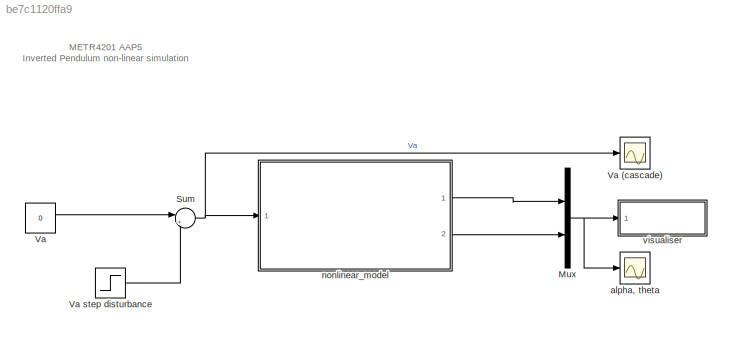
MODEL slx_be7c1120ffa9
KIND model
CONFIG AbsTol = auto
CONFIG EnableMultiTasking = on
CONFIG FixedStep = .001
CONFIG MaxStep = auto
CONFIG MinStep = auto
CONFIG RelTol = 1e-3
CONFIG SampleTimeConstraint = Unconstrained
CONFIG SolverName = FixedStepAuto
CONFIG StartTime = 0.0
CONFIG StopTime = 10
BLOCK [Mux] Mux
  DisplayOption = bar
  Inputs = 2
  Ports = [2, 1]
BLOCK [Sum] Sum
  Inputs = |++
  Ports = [2, 1]
BLOCK [Constant] Va
  Value = 0
BLOCK [Scope] Va (cascade)
  Floating = off
  NumInputPorts = 1
  Ports = [1]
  ScopeSpecificationString = C++SS(StrPVP('Location','[721, 576, 1281, 996]'),StrPVP('Open','off'),MxPVP('AxesTitles',54,'struct(''axes1'',''%<SignalLabel>'')'),MxPVP('ScopeGraphics',57,'struct(''FigureColor'',''[0.156862745098039 0.156862745098039 0.156862745098039]'',''AxesColor'',''[0 0 0]'',''AxesTickColor'',''[0.686274509803922 0.686274509803922 0.686274509803922]'',''LineColors'',''[1 1 0;1 0 1;0 1 1;1 0 0;0 1 0;0 0 1]'...<+379ch>
BLOCK [Step] Va step disturbance
  SampleTime = 0
BLOCK [Scope] alpha, theta
  Floating = off
  NumInputPorts = 1
  Ports = [1]
  ScopeSpecificationString = C++SS(StrPVP('Location','[1287, 242, 1847, 662]'),StrPVP('Open','off'),MxPVP('AxesTitles',54,'struct(''axes1'',''%<SignalLabel>'')'),MxPVP('ScopeGraphics',57,'struct(''FigureColor'',''[0.156862745098039 0.156862745098039 0.156862745098039]'',''AxesColor'',''[0 0 0]'',''AxesTickColor'',''[0.686274509803922 0.686274509803922 0.686274509803922]'',''LineColors'',''[1 1 0;1 0 1;0 1 1;1 0 0;0 1 0;0 0 1]...<+418ch>
BLOCK [SubSystem] nonlinear_model
  MinAlgLoopOccurrences = on
  Ports = [1, 2]
  ReferencedSubsystem = nonlinear_model
  RequestExecContextInheritance = off
  TreatAsGroupedWhenPropagatingVariantConditions = off
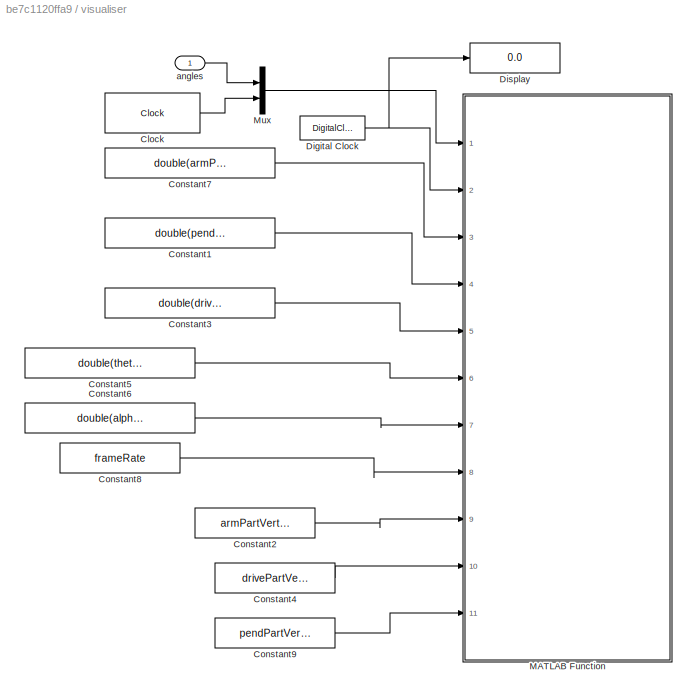
BLOCK [SubSystem] visualiser
  Ports = [1]
  RequestExecContextInheritance = off
BLOCK [Clock] visualiser/Clock
  DisplayTime = on
BLOCK [Constant] visualiser/Constant1
  Value = double(pendPartPatchHandle)
BLOCK [Constant] visualiser/Constant2
  Value = armPartVertices
  VectorParams1D = off
BLOCK [Constant] visualiser/Constant3
  Value = double(drivePartPatchHandle)
BLOCK [Constant] visualiser/Constant4
  Value = drivePartVertices
  VectorParams1D = off
BLOCK [Constant] visualiser/Constant5
  Value = double(thetaPlotHandle)
BLOCK [Constant] visualiser/Constant6
  Value = double(alphaPlotHandle)
BLOCK [Constant] visualiser/Constant7
  Value = double(armPartPatchHandle)
BLOCK [Constant] visualiser/Constant8
  Value = frameRate
  VectorParams1D = off
BLOCK [Constant] visualiser/Constant9
  Value = pendPartVertices
  VectorParams1D = off
BLOCK [DigitalClock] visualiser/Digital Clock
  SampleTime = .001
BLOCK [Display] visualiser/Display
  Decimation = 1
  Ports = [1]
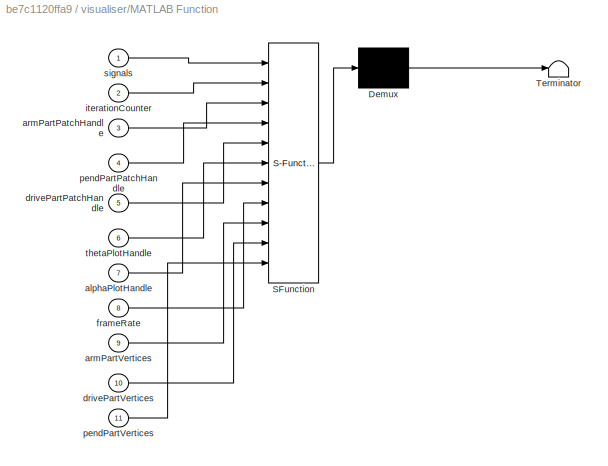
BLOCK [SubSystem] visualiser/MATLAB Function
  ErrorFcn = Stateflow.Translate.translate
  PermitHierarchicalResolution = ExplicitOnly
  Ports = [11]
  RequestExecContextInheritance = off
  SFBlockType = MATLAB Function
  TreatAsAtomicUnit = on
BLOCK [Demux] visualiser/MATLAB Function/ Demux 
  Outputs = 1
  Ports = [1, 1]
BLOCK [S-Function] visualiser/MATLAB Function/ SFunction 
  EnableBusSupport = on
  FunctionName = sf_sfun
  PortCounts = [11 1]
  Ports = [11, 1]
  SFcnIsStateOwnerBlock = off
  SFunctionDeploymentMode = off
  Tag = Stateflow S-Function 2
BLOCK [Terminator] visualiser/MATLAB Function/ Terminator 
BLOCK [Inport] visualiser/MATLAB Function/alphaPlotHandle
  Port = 7
BLOCK [Inport] visualiser/MATLAB Function/armPartPatchHandle
  Port = 3
BLOCK [Inport] visualiser/MATLAB Function/armPartVertices
  Port = 9
BLOCK [Inport] visualiser/MATLAB Function/drivePartPatchHandle
  Port = 5
BLOCK [Inport] visualiser/MATLAB Function/drivePartVertices
  Port = 10
BLOCK [Inport] visualiser/MATLAB Function/frameRate
  Port = 8
BLOCK [Inport] visualiser/MATLAB Function/iterationCounter
  Port = 2
BLOCK [Inport] visualiser/MATLAB Function/pendPartPatchHandle
  Port = 4
BLOCK [Inport] visualiser/MATLAB Function/pendPartVertices
  Port = 11
BLOCK [Inport] visualiser/MATLAB Function/signals
BLOCK [Inport] visualiser/MATLAB Function/thetaPlotHandle
  Port = 6
BLOCK [Mux] visualiser/Mux
  DisplayOption = bar
  Inputs = 2
  Ports = [2, 1]
BLOCK [Inport] visualiser/angles
ANNOTATION (root): METR4201 AAP5 Inverted Pendulum non-linear simulation
NET Mux:1 -> alpha, theta:1, visualiser:1
NET Sum:1 -> Va (cascade):1, nonlinear_model:1
LINE Va step disturbance:1 -> Sum:2
LINE Va:1 -> Sum:1
LINE nonlinear_model:1 -> Mux:1
LINE nonlinear_model:2 -> Mux:2
LINE visualiser/Clock:1 -> visualiser/Mux:2
LINE visualiser/Constant1:1 -> visualiser/MATLAB Function:4
LINE visualiser/Constant2:1 -> visualiser/MATLAB Function:9
LINE visualiser/Constant3:1 -> visualiser/MATLAB Function:5
LINE visualiser/Constant4:1 -> visualiser/MATLAB Function:10
LINE visualiser/Constant5:1 -> visualiser/MATLAB Function:6
LINE visualiser/Constant6:1 -> visualiser/MATLAB Function:7
LINE visualiser/Constant7:1 -> visualiser/MATLAB Function:3
LINE visualiser/Constant8:1 -> visualiser/MATLAB Function:8
LINE visualiser/Constant9:1 -> visualiser/MATLAB Function:11
NET visualiser/Digital Clock:1 -> visualiser/Display:1, visualiser/MATLAB Function:2
LINE visualiser/Mux:1 -> visualiser/MATLAB Function:1
LINE visualiser/angles:1 -> visualiser/Mux:1
note: NET lines group one-source signal fan-out (src -> all destinations, sorted); 1:1 wires keep LINE
CHART visualiser/MATLAB Function states=1 transitions=1
  STATE_LABEL 'eML_blk_kernel()'
  STATE_LABEL "SCRIPT:\nfunction  updateVisualiser(signals, iterationCounter, armPartPatchHandle, pendPartPatchHandle, drivePartPatchHandle, thetaPlotHandle, alphaPlotHandle, frameRate, armPartVertices,drivePartVertices,pendPartVertices)\n\n%\n% We need the set and get functions for changing plots.\n%\ncoder.extrinsic('set');\ncoder.extrinsic('get');\n%\n% Clear the theta and alpha plots if this is the first iteration.\n%...<+2337ch>"
CHART  states=0 transitions=0
